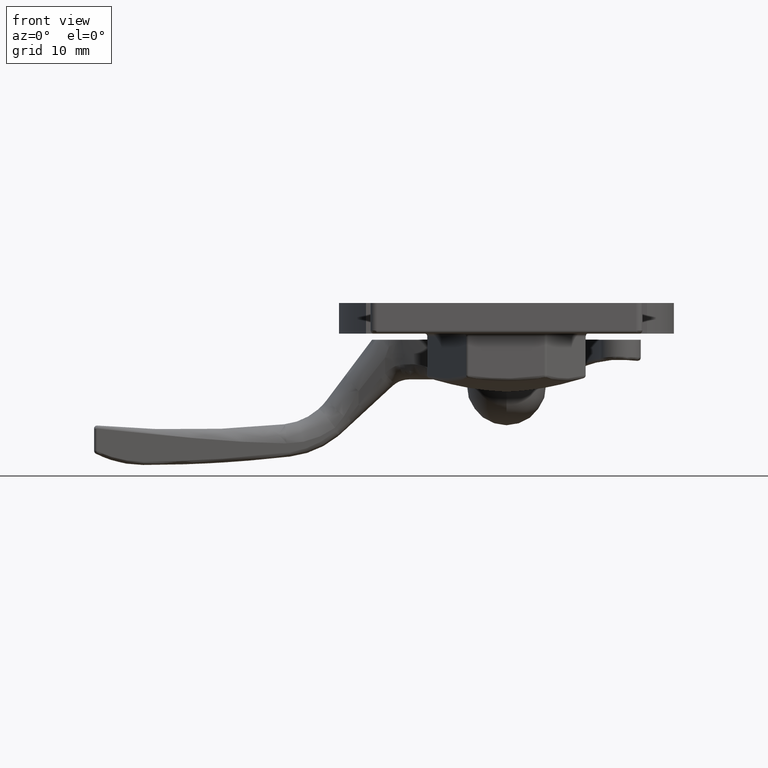
[diagram: clean part render]
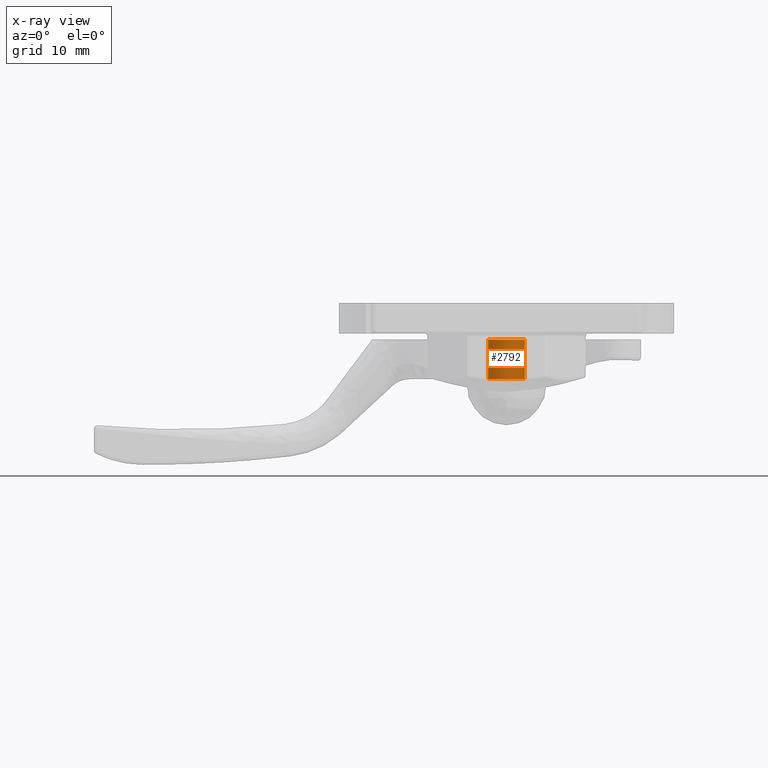
[diagram: x-ray — body ghosted, one internal face saturated and labeled with its STEP entity id]
A machine part, front view, then the same camera in x-ray: the body is ghosted and one INTERNAL B-rep face — a face not visible from any outside direction — is saturated and labeled: STEP entity #2792.
In plain terms, the highlighted cylindrical surface (bore or boss wall) has radius 3 mm, axis along (0, 0, 1).
Its self-contained STEP definition (entity closure, byte-faithful):
#607=FACE_BOUND('',#833,.T.);
#645=FACE_OUTER_BOUND('',#832,.T.);
#832=EDGE_LOOP('',(#1876));
#833=EDGE_LOOP('',(#1877));
#1057=CIRCLE('',#2984,3.);
#1058=CIRCLE('',#2985,3.);
#1177=VERTEX_POINT('',#3895);
#1178=VERTEX_POINT('',#3897);
#1448=EDGE_CURVE('',#1177,#1177,#1057,.T.);
#1449=EDGE_CURVE('',#1178,#1178,#1058,.T.);
#1876=ORIENTED_EDGE('',*,*,#1448,.F.);
#1877=ORIENTED_EDGE('',*,*,#1449,.F.);
#2732=CYLINDRICAL_SURFACE('',#2983,3.);
#2792=ADVANCED_FACE('',(#645,#607),#2732,.F.);
#2983=AXIS2_PLACEMENT_3D('',#3894,#3242,#3243);
#2984=AXIS2_PLACEMENT_3D('',#3896,#3244,#3245);
#2985=AXIS2_PLACEMENT_3D('',#3898,#3246,#3247);
#3242=DIRECTION('center_axis',(1.18338859902399E-16,-1.,0.));
#3243=DIRECTION('ref_axis',(-1.,-1.18338859902399E-16,-2.38366751490434E-13));
#3244=DIRECTION('center_axis',(8.96432846842059E-32,1.,0.));
#3245=DIRECTION('ref_axis',(-1.,-1.18338859902399E-16,-2.38366751490434E-13));
#3246=DIRECTION('center_axis',(1.26161707343768E-16,-1.,0.));
#3247=DIRECTION('ref_axis',(-1.,-1.18338859902399E-16,-2.38366751490434E-13));
#3894=CARTESIAN_POINT('Origin',(0.,6.49999999999999,0.));
#3895=CARTESIAN_POINT('',(3.,-1.86542946954312E-15,7.14732860431557E-13));
#3896=CARTESIAN_POINT('Origin',(7.69202589365595E-16,-2.22044604925031E-15,
0.));
#3897=CARTESIAN_POINT('',(3.,6.49999999999999,7.14732860431557E-13));
#3898=CARTESIAN_POINT('Origin',(-8.60576941286101E-32,6.49999999999999,
0.));